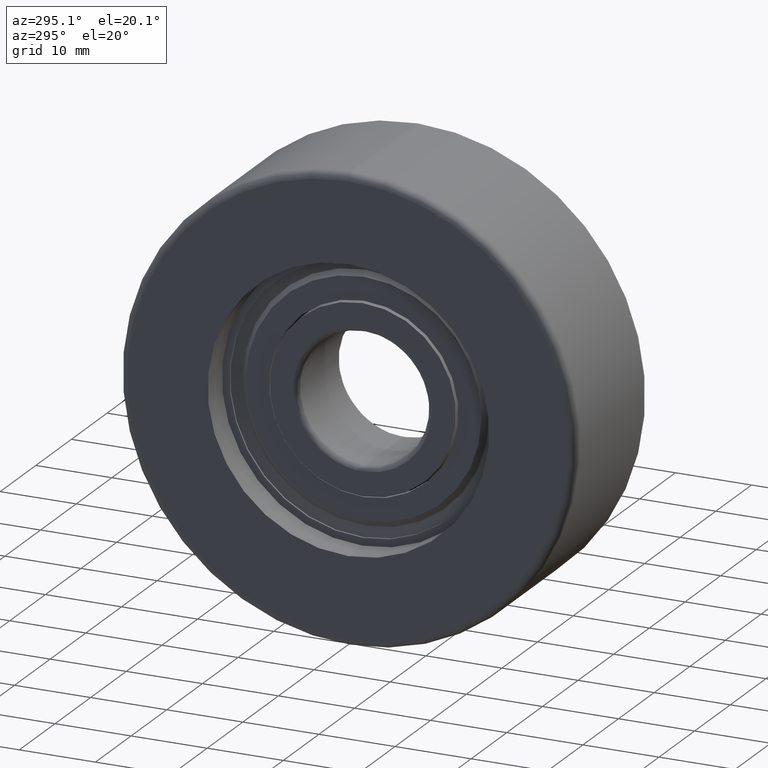
[diagram: clean part render]
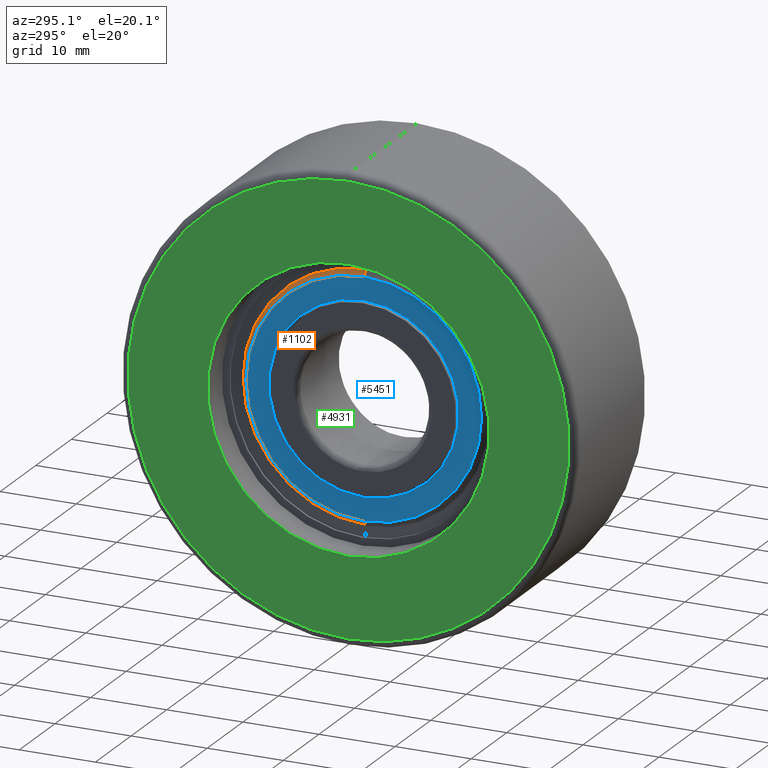
[diagram: same view with three faces highlighted in distinct colors, each labeled with its STEP entity id]
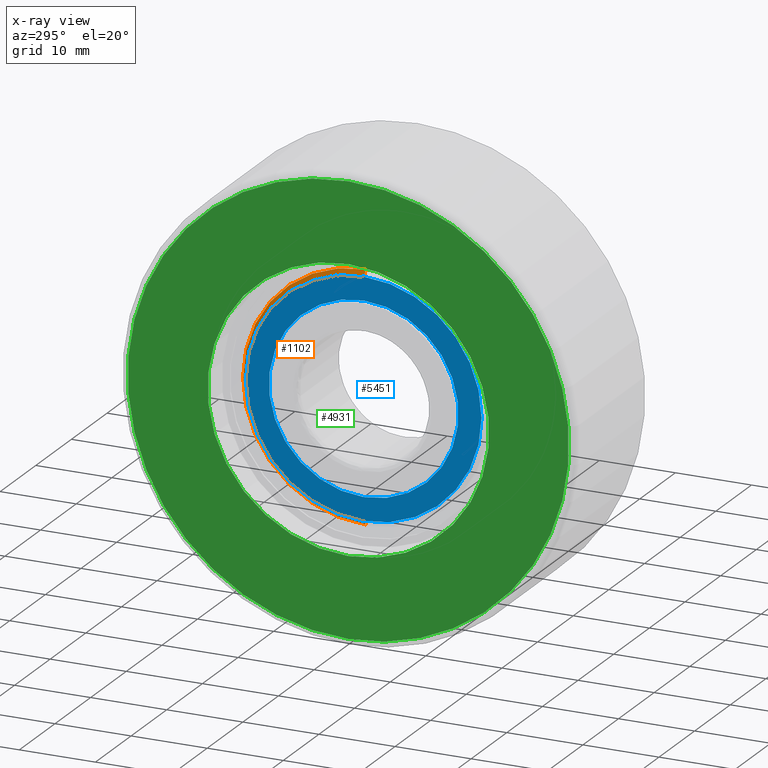
[diagram: x-ray of the same camera — body ghosted, the three highlighted faces saturated]
A machine part, auxiliary view with three faces highlighted in distinct colors.
The next image is the same camera in x-ray (body ghosted, the three faces saturated) — at least one of them is partly hidden behind the body in this view.
Their STEP definitions:

[orange] entity #1102 — the highlighted conical surface has half-angle 45 deg.
#43 = CARTESIAN_POINT ( 'NONE',  ( 0.9959589225403027200, 0.0000000000000000000, -6.127980498245326600E-016 ) ) ;
#146 = EDGE_CURVE ( 'NONE', #2415, #2472, #3506, .T. ) ;
#262 = DIRECTION ( 'NONE',  ( 1.190687372715243500E-016, 0.0000000000000000000, -1.000000000000000000 ) ) ;
#487 = ORIENTED_EDGE ( 'NONE', *, *, #511, .F. ) ;
#511 = EDGE_CURVE ( 'NONE', #4895, #4987, #4155, .T. ) ;
#607 = EDGE_CURVE ( 'NONE', #2415, #4895, #2828, .T. ) ;
#825 = AXIS2_PLACEMENT_3D ( 'NONE', #4171, #3765, #5495 ) ;
#1099 = CARTESIAN_POINT ( 'NONE',  ( 0.3119589225403004400, 0.0000000000000000000, -6.953826642629669500E-016 ) ) ;
#1102 = ADVANCED_FACE ( 'NONE', ( #2958 ), #2391, .T. ) ;
#1136 = DIRECTION ( 'NONE',  ( 0.7071067811865506800, 8.659560562354893400E-017, 0.7071067811865443500 ) ) ;
#1158 = CARTESIAN_POINT ( 'NONE',  ( 0.3119589225403022700, 0.0000000000000000000, -15.47966103833160300 ) ) ;
#1764 = DIRECTION ( 'NONE',  ( -1.000000000000000000, -0.0000000000000000000, -1.207377404070672700E-016 ) ) ;
#1871 = ORIENTED_EDGE ( 'NONE', *, *, #607, .F. ) ;
#2391 = CONICAL_SURFACE ( 'NONE', #825, 16.16366103833159700, 0.7853981633974437300 ) ;
#2415 = VERTEX_POINT ( 'NONE', #3946 ) ;
#2443 = CARTESIAN_POINT ( 'NONE',  ( 0.9959589225402999400, 1.979477575309557300E-015, 16.16366103833159700 ) ) ;
#2445 = CIRCLE ( 'NONE', #4102, 16.16366103833159700 ) ;
#2472 = VERTEX_POINT ( 'NONE', #4941 ) ;
#2613 = VECTOR ( 'NONE', #5270, 1000.000000000000000 ) ;
#2828 = CIRCLE ( 'NONE', #5460, 15.47966103833160300 ) ;
#2913 = EDGE_LOOP ( 'NONE', ( #1871, #3588, #5314, #487 ) ) ;
#2958 = FACE_OUTER_BOUND ( 'NONE', #2913, .T. ) ;
#3083 = CARTESIAN_POINT ( 'NONE',  ( 0.9959589225403047100, 0.0000000000000000000, -16.16366103833159700 ) ) ;
#3373 = VECTOR ( 'NONE', #1136, 1000.000000000000000 ) ;
#3506 = LINE ( 'NONE', #2443, #3373 ) ;
#3588 = ORIENTED_EDGE ( 'NONE', *, *, #146, .T. ) ;
#3765 = DIRECTION ( 'NONE',  ( 1.000000000000000000, 0.0000000000000000000, 1.207377404070672700E-016 ) ) ;
#3946 = CARTESIAN_POINT ( 'NONE',  ( 0.3119589225402986100, 1.937594654778718200E-015, 15.47966103833160300 ) ) ;
#4024 = CARTESIAN_POINT ( 'NONE',  ( 0.9959589225403038300, 0.0000000000000000000, -16.16366103833159700 ) ) ;
#4102 = AXIS2_PLACEMENT_3D ( 'NONE', #43, #1764, #4748 ) ;
#4155 = LINE ( 'NONE', #4024, #2613 ) ;
#4169 = EDGE_CURVE ( 'NONE', #2472, #4987, #2445, .T. ) ;
#4171 = CARTESIAN_POINT ( 'NONE',  ( 0.9959589225403018300, 0.0000000000000000000, -6.127980498245327600E-016 ) ) ;
#4748 = DIRECTION ( 'NONE',  ( 1.207377404070672900E-016, 0.0000000000000000000, -1.000000000000000000 ) ) ;
#4895 = VERTEX_POINT ( 'NONE', #1158 ) ;
#4941 = CARTESIAN_POINT ( 'NONE',  ( 0.9959589225403008300, 1.979477575309557300E-015, 16.16366103833159700 ) ) ;
#4987 = VERTEX_POINT ( 'NONE', #3083 ) ;
#5270 = DIRECTION ( 'NONE',  ( 0.7071067811865507900, 0.0000000000000000000, -0.7071067811865441300 ) ) ;
#5314 = ORIENTED_EDGE ( 'NONE', *, *, #4169, .T. ) ;
#5374 = DIRECTION ( 'NONE',  ( -1.000000000000000000, -0.0000000000000000000, -1.207377404070672700E-016 ) ) ;
#5460 = AXIS2_PLACEMENT_3D ( 'NONE', #1099, #5374, #262 ) ;
#5495 = DIRECTION ( 'NONE',  ( 1.207377404070672900E-016, 0.0000000000000000000, -1.000000000000000000 ) ) ;

[blue] entity #5451 — the highlighted planar face has unit normal (-1, 0, -0).
#84 = DIRECTION ( 'NONE',  ( -2.202342035465010200E-016, -1.000000000000000000, 0.0000000000000000000 ) ) ;
#139 = CARTESIAN_POINT ( 'NONE',  ( 0.3119589225402975000, 0.0000000000000000000, 12.45500000000000000 ) ) ;
#262 = DIRECTION ( 'NONE',  ( 1.190687372715243500E-016, 0.0000000000000000000, -1.000000000000000000 ) ) ;
#442 = CIRCLE ( 'NONE', #5439, 12.45500000000000000 ) ;
#495 = DIRECTION ( 'NONE',  ( -1.218693730613975300E-016, 0.0000000000000000000, 1.000000000000000000 ) ) ;
#603 = CARTESIAN_POINT ( 'NONE',  ( 0.3119589225402990000, 0.0000000000000000000, -6.965611244259831100E-016 ) ) ;
#607 = EDGE_CURVE ( 'NONE', #2415, #4895, #2828, .T. ) ;
#696 = AXIS2_PLACEMENT_3D ( 'NONE', #3119, #1360, #84 ) ;
#1099 = CARTESIAN_POINT ( 'NONE',  ( 0.3119589225403004400, 0.0000000000000000000, -6.953826642629669500E-016 ) ) ;
#1112 = DIRECTION ( 'NONE',  ( -1.218693730613975300E-016, 0.0000000000000000000, 1.000000000000000000 ) ) ;
#1158 = CARTESIAN_POINT ( 'NONE',  ( 0.3119589225403022700, 0.0000000000000000000, -15.47966103833160300 ) ) ;
#1252 = AXIS2_PLACEMENT_3D ( 'NONE', #2692, #3136, #495 ) ;
#1259 = EDGE_CURVE ( 'NONE', #2689, #2975, #2824, .T. ) ;
#1360 = DIRECTION ( 'NONE',  ( -1.000000000000000000, 2.202342035465010200E-016, -1.224606353822380000E-016 ) ) ;
#1697 = EDGE_LOOP ( 'NONE', ( #3170, #5233 ) ) ;
#1769 = FACE_OUTER_BOUND ( 'NONE', #4570, .T. ) ;
#2382 = CARTESIAN_POINT ( 'NONE',  ( 0.3119589225403004400, 0.0000000000000000000, -6.953826642629669500E-016 ) ) ;
#2415 = VERTEX_POINT ( 'NONE', #3946 ) ;
#2523 = CARTESIAN_POINT ( 'NONE',  ( 0.3119589225403005500, 1.525297588338028400E-015, -12.45500000000000000 ) ) ;
#2650 = FACE_BOUND ( 'NONE', #1697, .T. ) ;
#2689 = VERTEX_POINT ( 'NONE', #2523 ) ;
#2692 = CARTESIAN_POINT ( 'NONE',  ( 0.3119589225402990000, 0.0000000000000000000, -6.965611244259831100E-016 ) ) ;
#2824 = CIRCLE ( 'NONE', #1252, 12.45500000000000000 ) ;
#2828 = CIRCLE ( 'NONE', #5460, 15.47966103833160300 ) ;
#2857 = DIRECTION ( 'NONE',  ( -1.000000000000000000, -0.0000000000000000000, -1.207377404070672700E-016 ) ) ;
#2943 = CIRCLE ( 'NONE', #4897, 15.47966103833160300 ) ;
#2975 = VERTEX_POINT ( 'NONE', #139 ) ;
#3119 = CARTESIAN_POINT ( 'NONE',  ( 0.3119589225402990000, 13.96733051916580100, -6.965611244259830100E-016 ) ) ;
#3136 = DIRECTION ( 'NONE',  ( 1.000000000000000000, -0.0000000000000000000, 1.224606353822380000E-016 ) ) ;
#3170 = ORIENTED_EDGE ( 'NONE', *, *, #4393, .T. ) ;
#3397 = EDGE_CURVE ( 'NONE', #4895, #2415, #2943, .T. ) ;
#3720 = DIRECTION ( 'NONE',  ( 1.190687372715243500E-016, 0.0000000000000000000, -1.000000000000000000 ) ) ;
#3939 = PLANE ( 'NONE',  #696 ) ;
#3946 = CARTESIAN_POINT ( 'NONE',  ( 0.3119589225402986100, 1.937594654778718200E-015, 15.47966103833160300 ) ) ;
#4266 = ORIENTED_EDGE ( 'NONE', *, *, #607, .T. ) ;
#4393 = EDGE_CURVE ( 'NONE', #2975, #2689, #442, .T. ) ;
#4552 = DIRECTION ( 'NONE',  ( 1.000000000000000000, -0.0000000000000000000, 1.224606353822380000E-016 ) ) ;
#4570 = EDGE_LOOP ( 'NONE', ( #5133, #4266 ) ) ;
#4895 = VERTEX_POINT ( 'NONE', #1158 ) ;
#4897 = AXIS2_PLACEMENT_3D ( 'NONE', #2382, #2857, #3720 ) ;
#5133 = ORIENTED_EDGE ( 'NONE', *, *, #3397, .T. ) ;
#5233 = ORIENTED_EDGE ( 'NONE', *, *, #1259, .T. ) ;
#5374 = DIRECTION ( 'NONE',  ( -1.000000000000000000, -0.0000000000000000000, -1.207377404070672700E-016 ) ) ;
#5439 = AXIS2_PLACEMENT_3D ( 'NONE', #603, #4552, #1112 ) ;
#5451 = ADVANCED_FACE ( 'NONE', ( #1769, #2650 ), #3939, .T. ) ;
#5460 = AXIS2_PLACEMENT_3D ( 'NONE', #1099, #5374, #262 ) ;

[green] entity #4931 — the highlighted planar face has unit normal (1, 0, 0).
#31 = CARTESIAN_POINT ( 'NONE',  ( -1.925929944387235900E-031, 0.0000000000000000000, 18.50000000000000000 ) ) ;
#85 = DIRECTION ( 'NONE',  ( -1.000000000000000000, -0.0000000000000000000, -0.0000000000000000000 ) ) ;
#118 = CIRCLE ( 'NONE', #4638, 28.99999999999999600 ) ;
#544 = CARTESIAN_POINT ( 'NONE',  ( 0.0000000000000000000, 0.0000000000000000000, -28.99999999999999600 ) ) ;
#704 = ORIENTED_EDGE ( 'NONE', *, *, #5440, .F. ) ;
#797 = CIRCLE ( 'NONE', #2499, 18.50000000000000000 ) ;
#934 = DIRECTION ( 'NONE',  ( 0.0000000000000000000, 0.0000000000000000000, 1.000000000000000000 ) ) ;
#953 = DIRECTION ( 'NONE',  ( 0.0000000000000000000, 0.0000000000000000000, -1.000000000000000000 ) ) ;
#1299 = EDGE_CURVE ( 'NONE', #5168, #2002, #5578, .T. ) ;
#1406 = VERTEX_POINT ( 'NONE', #3913 ) ;
#1430 = ORIENTED_EDGE ( 'NONE', *, *, #1299, .T. ) ;
#1467 = EDGE_LOOP ( 'NONE', ( #704, #5256 ) ) ;
#1476 = EDGE_CURVE ( 'NONE', #1406, #3590, #797, .T. ) ;
#1688 = EDGE_CURVE ( 'NONE', #2002, #5168, #118, .T. ) ;
#1813 = DIRECTION ( 'NONE',  ( 0.0000000000000000000, 0.0000000000000000000, -1.000000000000000000 ) ) ;
#2002 = VERTEX_POINT ( 'NONE', #5137 ) ;
#2046 = AXIS2_PLACEMENT_3D ( 'NONE', #2191, #5215, #934 ) ;
#2105 = DIRECTION ( 'NONE',  ( 1.000000000000000000, 0.0000000000000000000, 0.0000000000000000000 ) ) ;
#2191 = CARTESIAN_POINT ( 'NONE',  ( -1.925929944387235900E-031, 0.0000000000000000000, 0.0000000000000000000 ) ) ;
#2204 = CARTESIAN_POINT ( 'NONE',  ( 0.0000000000000000000, 0.0000000000000000000, 0.0000000000000000000 ) ) ;
#2210 = CARTESIAN_POINT ( 'NONE',  ( 0.0000000000000000000, 0.0000000000000000000, 0.0000000000000000000 ) ) ;
#2257 = DIRECTION ( 'NONE',  ( 0.0000000000000000000, 0.0000000000000000000, 1.000000000000000000 ) ) ;
#2499 = AXIS2_PLACEMENT_3D ( 'NONE', #5337, #4887, #2257 ) ;
#3002 = AXIS2_PLACEMENT_3D ( 'NONE', #4278, #2105, #3461 ) ;
#3007 = PLANE ( 'NONE',  #3002 ) ;
#3095 = AXIS2_PLACEMENT_3D ( 'NONE', #2204, #3564, #1813 ) ;
#3461 = DIRECTION ( 'NONE',  ( 0.0000000000000000000, 0.0000000000000000000, -1.000000000000000000 ) ) ;
#3564 = DIRECTION ( 'NONE',  ( -1.000000000000000000, -0.0000000000000000000, -0.0000000000000000000 ) ) ;
#3590 = VERTEX_POINT ( 'NONE', #31 ) ;
#3651 = EDGE_LOOP ( 'NONE', ( #1430, #3910 ) ) ;
#3862 = FACE_BOUND ( 'NONE', #1467, .T. ) ;
#3910 = ORIENTED_EDGE ( 'NONE', *, *, #1688, .T. ) ;
#3913 = CARTESIAN_POINT ( 'NONE',  ( -1.925929944387235900E-031, 2.265596578422603400E-015, -18.50000000000000000 ) ) ;
#4278 = CARTESIAN_POINT ( 'NONE',  ( -9.629649721936179300E-032, 18.50000000000000000, 0.0000000000000000000 ) ) ;
#4334 = FACE_OUTER_BOUND ( 'NONE', #3651, .T. ) ;
#4638 = AXIS2_PLACEMENT_3D ( 'NONE', #2210, #85, #953 ) ;
#4674 = CIRCLE ( 'NONE', #2046, 18.50000000000000000 ) ;
#4887 = DIRECTION ( 'NONE',  ( -1.000000000000000000, -0.0000000000000000000, -0.0000000000000000000 ) ) ;
#4931 = ADVANCED_FACE ( 'NONE', ( #4334, #3862 ), #3007, .F. ) ;
#5137 = CARTESIAN_POINT ( 'NONE',  ( 0.0000000000000000000, 3.612708057484691600E-015, 28.99999999999999600 ) ) ;
#5168 = VERTEX_POINT ( 'NONE', #544 ) ;
#5215 = DIRECTION ( 'NONE',  ( -1.000000000000000000, -0.0000000000000000000, -0.0000000000000000000 ) ) ;
#5256 = ORIENTED_EDGE ( 'NONE', *, *, #1476, .F. ) ;
#5337 = CARTESIAN_POINT ( 'NONE',  ( -1.925929944387235900E-031, 0.0000000000000000000, 0.0000000000000000000 ) ) ;
#5440 = EDGE_CURVE ( 'NONE', #3590, #1406, #4674, .T. ) ;
#5578 = CIRCLE ( 'NONE', #3095, 28.99999999999999600 ) ;